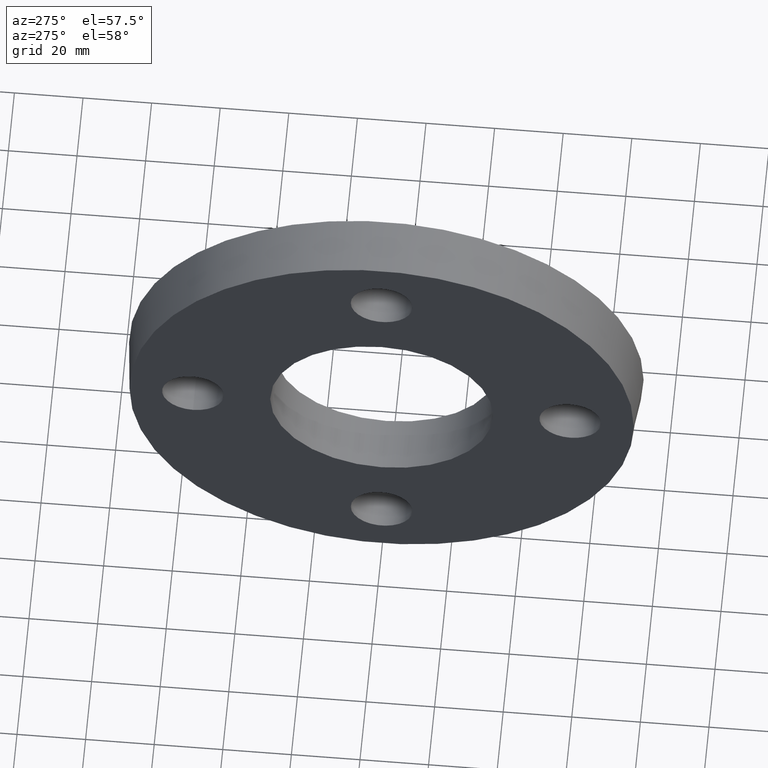
[diagram: clean part render]
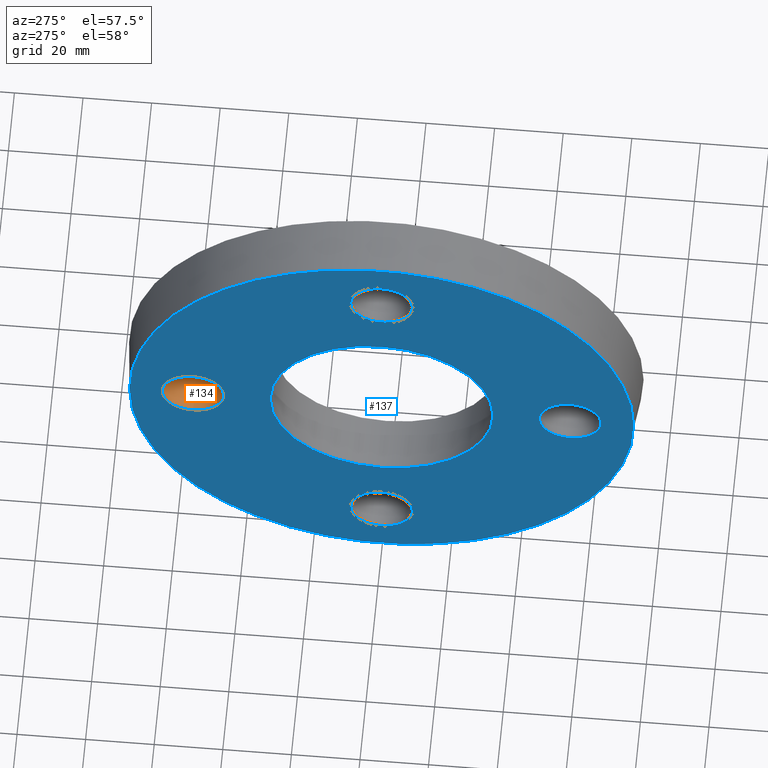
[diagram: same view with the hole feature highlighted: cylindrical wall and planar end face, labeled with their STEP entity ids]
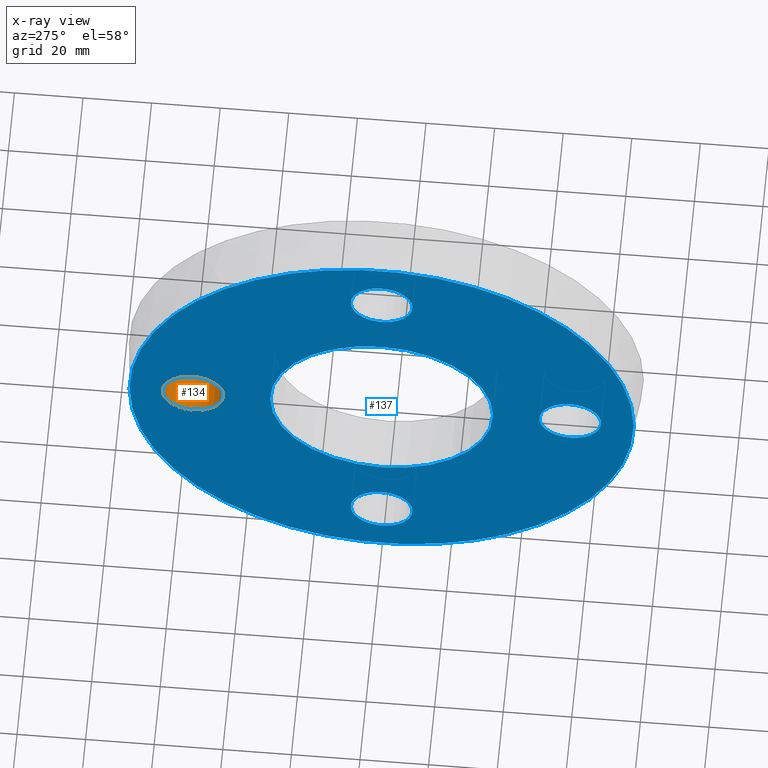
[diagram: x-ray of the same camera — body ghosted, the hole faces saturated]
A machine part, auxiliary view. The highlighted faces form one hole feature of diameter 18 mm: the cylindrical wall (entity #134, orange) and its adjacent planar end face (entity #137, blue) — they share a circular edge in the B-rep.
The next image is the same camera in x-ray (body ghosted, the hole faces saturated) — the bore reads through the body.
Wall:
#21=FACE_BOUND('',#49,.T.);
#37=FACE_OUTER_BOUND('',#48,.T.);
#48=EDGE_LOOP('',(#108));
#49=EDGE_LOOP('',(#109));
#72=CIRCLE('',#151,9.);
#73=CIRCLE('',#152,9.);
#84=VERTEX_POINT('',#220);
#85=VERTEX_POINT('',#222);
#96=EDGE_CURVE('',#84,#84,#72,.T.);
#97=EDGE_CURVE('',#85,#85,#73,.T.);
#108=ORIENTED_EDGE('',*,*,#96,.F.);
#109=ORIENTED_EDGE('',*,*,#97,.F.);
#129=CYLINDRICAL_SURFACE('',#150,9.);
#134=ADVANCED_FACE('',(#37,#21),#129,.F.);
#150=AXIS2_PLACEMENT_3D('',#219,#181,#182);
#151=AXIS2_PLACEMENT_3D('',#221,#183,#184);
#152=AXIS2_PLACEMENT_3D('',#223,#185,#186);
#181=DIRECTION('center_axis',(-1.,0.,0.));
#182=DIRECTION('ref_axis',(0.,0.,1.));
#183=DIRECTION('center_axis',(1.,0.,0.));
#184=DIRECTION('ref_axis',(0.,0.,1.));
#185=DIRECTION('center_axis',(-1.,0.,0.));
#186=DIRECTION('ref_axis',(0.,0.,1.));
#219=CARTESIAN_POINT('Origin',(8.,55.,0.));
#220=CARTESIAN_POINT('',(-8.,55.,-9.));
#221=CARTESIAN_POINT('Origin',(-8.,55.,0.));
#222=CARTESIAN_POINT('',(8.,55.,-9.));
#223=CARTESIAN_POINT('Origin',(8.,55.,0.));
End face:
#17=PLANE('',#158);
#28=FACE_BOUND('',#59,.T.);
#29=FACE_BOUND('',#60,.T.);
#30=FACE_BOUND('',#61,.T.);
#31=FACE_BOUND('',#62,.T.);
#32=FACE_BOUND('',#63,.T.);
#40=FACE_OUTER_BOUND('',#58,.T.);
#58=EDGE_LOOP('',(#118));
#59=EDGE_LOOP('',(#119));
#60=EDGE_LOOP('',(#120));
#61=EDGE_LOOP('',(#121));
#62=EDGE_LOOP('',(#122));
#63=EDGE_LOOP('',(#123));
#66=CIRCLE('',#142,9.);
#68=CIRCLE('',#145,9.);
#70=CIRCLE('',#148,9.);
#72=CIRCLE('',#151,9.);
#76=CIRCLE('',#157,73.5);
#77=CIRCLE('',#159,32.5);
#78=VERTEX_POINT('',#205);
#80=VERTEX_POINT('',#210);
#82=VERTEX_POINT('',#215);
#84=VERTEX_POINT('',#220);
#88=VERTEX_POINT('',#230);
#89=VERTEX_POINT('',#233);
#90=EDGE_CURVE('',#78,#78,#66,.T.);
#92=EDGE_CURVE('',#80,#80,#68,.T.);
#94=EDGE_CURVE('',#82,#82,#70,.T.);
#96=EDGE_CURVE('',#84,#84,#72,.T.);
#100=EDGE_CURVE('',#88,#88,#76,.T.);
#101=EDGE_CURVE('',#89,#89,#77,.T.);
#118=ORIENTED_EDGE('',*,*,#100,.T.);
#119=ORIENTED_EDGE('',*,*,#90,.T.);
#120=ORIENTED_EDGE('',*,*,#92,.T.);
#121=ORIENTED_EDGE('',*,*,#94,.T.);
#122=ORIENTED_EDGE('',*,*,#96,.T.);
#123=ORIENTED_EDGE('',*,*,#101,.F.);
#137=ADVANCED_FACE('',(#40,#28,#29,#30,#31,#32),#17,.T.);
#142=AXIS2_PLACEMENT_3D('',#206,#165,#166);
#145=AXIS2_PLACEMENT_3D('',#211,#171,#172);
#148=AXIS2_PLACEMENT_3D('',#216,#177,#178);
#151=AXIS2_PLACEMENT_3D('',#221,#183,#184);
#157=AXIS2_PLACEMENT_3D('',#231,#195,#196);
#158=AXIS2_PLACEMENT_3D('',#232,#197,#198);
#159=AXIS2_PLACEMENT_3D('',#234,#199,#200);
#165=DIRECTION('center_axis',(1.,0.,0.));
#166=DIRECTION('ref_axis',(0.,-1.,-1.83697019872103E-16));
#171=DIRECTION('center_axis',(1.,0.,0.));
#172=DIRECTION('ref_axis',(0.,1.22464679914735E-16,-1.));
#177=DIRECTION('center_axis',(1.,0.,0.));
#178=DIRECTION('ref_axis',(0.,1.,6.12323399573677E-17));
#183=DIRECTION('center_axis',(1.,0.,0.));
#184=DIRECTION('ref_axis',(0.,0.,1.));
#195=DIRECTION('center_axis',(-1.,0.,0.));
#196=DIRECTION('ref_axis',(0.,0.,1.));
#197=DIRECTION('center_axis',(-1.,0.,0.));
#198=DIRECTION('ref_axis',(0.,0.,1.));
#199=DIRECTION('center_axis',(-1.,0.,0.));
#200=DIRECTION('ref_axis',(0.,0.,1.));
#205=CARTESIAN_POINT('',(-8.,8.99999999999999,55.));
#206=CARTESIAN_POINT('Origin',(-8.,-1.01033360929657E-14,55.));
#210=CARTESIAN_POINT('',(-8.,-55.,8.99999999999999));
#211=CARTESIAN_POINT('Origin',(-8.,-55.,-6.73555739531044E-15));
#215=CARTESIAN_POINT('',(-8.,-9.,-55.));
#216=CARTESIAN_POINT('Origin',(-8.,3.36777869765522E-15,-55.));
#220=CARTESIAN_POINT('',(-8.,55.,-9.));
#221=CARTESIAN_POINT('Origin',(-8.,55.,0.));
#230=CARTESIAN_POINT('',(-7.99999999999999,-73.5,0.));
#231=CARTESIAN_POINT('Origin',(-7.99999999999999,0.,0.));
#232=CARTESIAN_POINT('Origin',(-8.,-32.5,0.));
#233=CARTESIAN_POINT('',(-8.,-32.5,0.));
#234=CARTESIAN_POINT('Origin',(-8.,0.,0.));